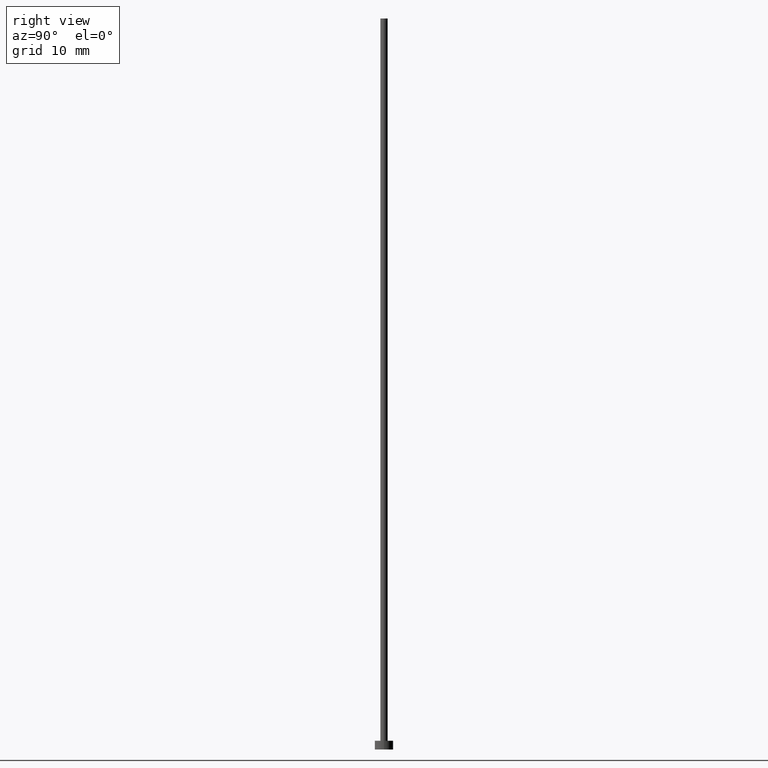
[diagram: clean part render]
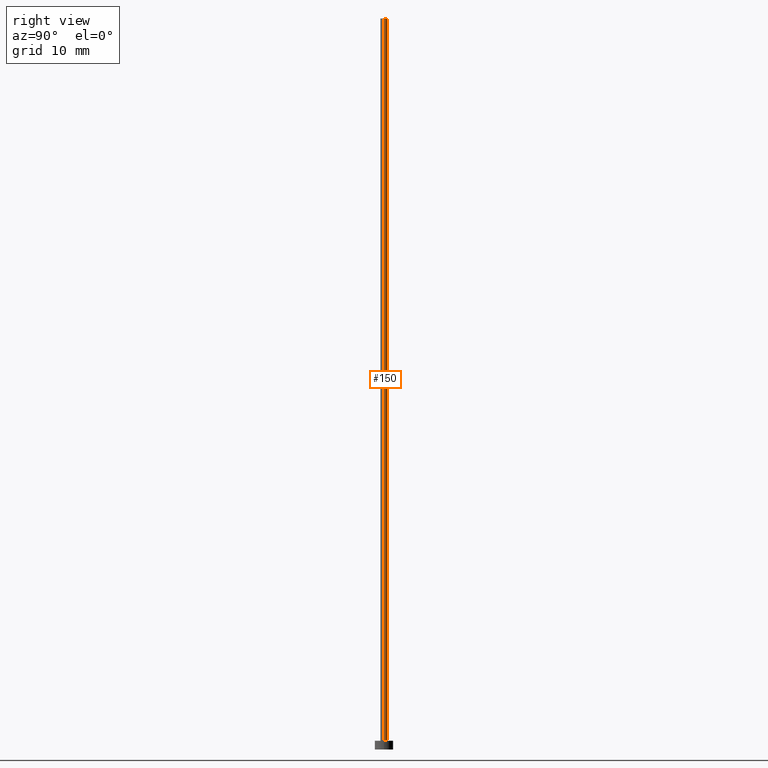
[diagram: same view with one face highlighted and labeled with its STEP entity id]
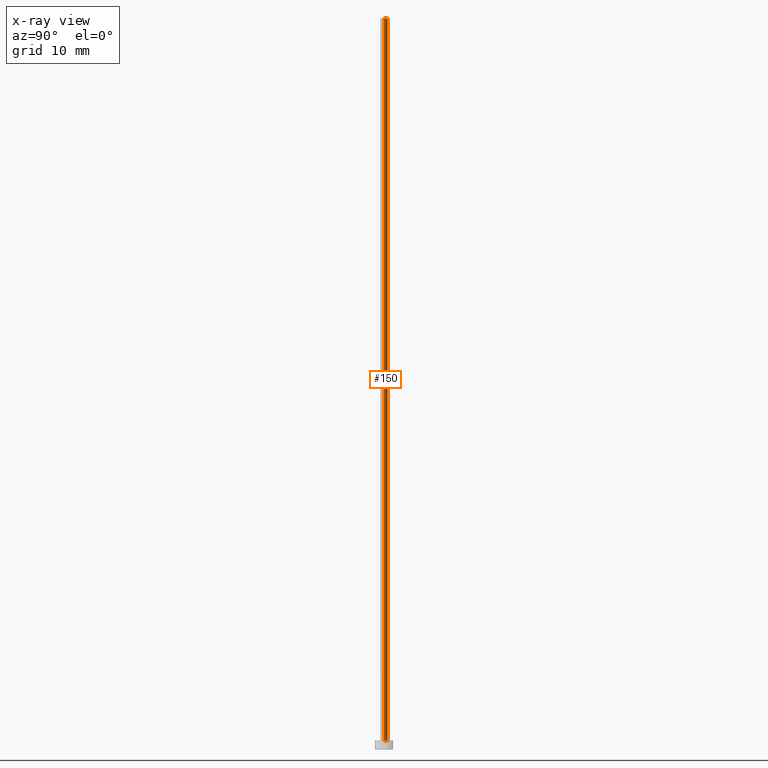
[diagram: x-ray of the same camera — body ghosted, the highlighted face saturated]
A machine part, right view. The second image highlights one B-rep face of the part: STEP entity #150.
The next image is the same camera in x-ray: the body ghosted, the highlighted face saturated — about 0% of this face is hidden behind the body in this view.
In plain terms, the highlighted cylindrical surface (edge-blend (fillet) strip) has radius 0.5 mm, axis along (-0, -0, -1).
Its self-contained STEP definition (entity closure, byte-faithful):
#2 = CIRCLE ( 'NONE', #157, 0.5000000000000000000 ) ;
#6 = CARTESIAN_POINT ( 'NONE',  ( -0.5000000000000000000, 0.000000000000000000, 100.0000000000000000 ) ) ;
#8 = AXIS2_PLACEMENT_3D ( 'NONE', #117, #19, #232 ) ;
#11 = ORIENTED_EDGE ( 'NONE', *, *, #81, .T. ) ;
#14 = AXIS2_PLACEMENT_3D ( 'NONE', #161, #80, #141 ) ;
#19 = DIRECTION ( 'NONE',  ( -0.000000000000000000, -0.000000000000000000, -1.000000000000000000 ) ) ;
#25 = VERTEX_POINT ( 'NONE', #6 ) ;
#30 = ORIENTED_EDGE ( 'NONE', *, *, #119, .F. ) ;
#54 = LINE ( 'NONE', #251, #67 ) ;
#56 = DIRECTION ( 'NONE',  ( -0.000000000000000000, -0.000000000000000000, -1.000000000000000000 ) ) ;
#67 = VECTOR ( 'NONE', #166, 1000.000000000000000 ) ;
#70 = VERTEX_POINT ( 'NONE', #82 ) ;
#80 = DIRECTION ( 'NONE',  ( 0.000000000000000000, 0.000000000000000000, 1.000000000000000000 ) ) ;
#81 = EDGE_CURVE ( 'NONE', #229, #227, #54, .T. ) ;
#82 = CARTESIAN_POINT ( 'NONE',  ( -0.5000000000000000000, 0.000000000000000000, 1.199999999999999956 ) ) ;
#96 = EDGE_LOOP ( 'NONE', ( #30, #11, #226, #111 ) ) ;
#111 = ORIENTED_EDGE ( 'NONE', *, *, #186, .F. ) ;
#117 = CARTESIAN_POINT ( 'NONE',  ( 0.000000000000000000, 0.000000000000000000, 100.0000000000000000 ) ) ;
#118 = DIRECTION ( 'NONE',  ( 1.000000000000000000, 0.000000000000000000, 0.000000000000000000 ) ) ;
#119 = EDGE_CURVE ( 'NONE', #229, #25, #2, .T. ) ;
#139 = EDGE_CURVE ( 'NONE', #227, #70, #199, .T. ) ;
#141 = DIRECTION ( 'NONE',  ( 1.000000000000000000, 0.000000000000000000, 0.000000000000000000 ) ) ;
#145 = FACE_OUTER_BOUND ( 'NONE', #96, .T. ) ;
#146 = CARTESIAN_POINT ( 'NONE',  ( 0.5000000000000000000, 6.123233995736766036E-17, 100.0000000000000000 ) ) ;
#150 = ADVANCED_FACE ( 'NONE', ( #145 ), #212, .T. ) ;
#157 = AXIS2_PLACEMENT_3D ( 'NONE', #182, #235, #118 ) ;
#161 = CARTESIAN_POINT ( 'NONE',  ( 0.000000000000000000, 0.000000000000000000, 1.199999999999999956 ) ) ;
#166 = DIRECTION ( 'NONE',  ( -0.000000000000000000, -0.000000000000000000, -1.000000000000000000 ) ) ;
#182 = CARTESIAN_POINT ( 'NONE',  ( 0.000000000000000000, 0.000000000000000000, 100.0000000000000000 ) ) ;
#186 = EDGE_CURVE ( 'NONE', #25, #70, #217, .T. ) ;
#198 = CARTESIAN_POINT ( 'NONE',  ( -0.5000000000000000000, 0.000000000000000000, 100.0000000000000000 ) ) ;
#199 = CIRCLE ( 'NONE', #14, 0.5000000000000000000 ) ;
#206 = VECTOR ( 'NONE', #56, 1000.000000000000000 ) ;
#212 = CYLINDRICAL_SURFACE ( 'NONE', #8, 0.5000000000000000000 ) ;
#217 = LINE ( 'NONE', #198, #206 ) ;
#226 = ORIENTED_EDGE ( 'NONE', *, *, #139, .T. ) ;
#227 = VERTEX_POINT ( 'NONE', #231 ) ;
#229 = VERTEX_POINT ( 'NONE', #146 ) ;
#231 = CARTESIAN_POINT ( 'NONE',  ( 0.5000000000000000000, 6.123233995736766036E-17, 1.199999999999999956 ) ) ;
#232 = DIRECTION ( 'NONE',  ( -1.000000000000000000, 0.000000000000000000, 0.000000000000000000 ) ) ;
#235 = DIRECTION ( 'NONE',  ( 0.000000000000000000, 0.000000000000000000, 1.000000000000000000 ) ) ;
#251 = CARTESIAN_POINT ( 'NONE',  ( 0.5000000000000000000, 6.123233995736766036E-17, 100.0000000000000000 ) ) ;